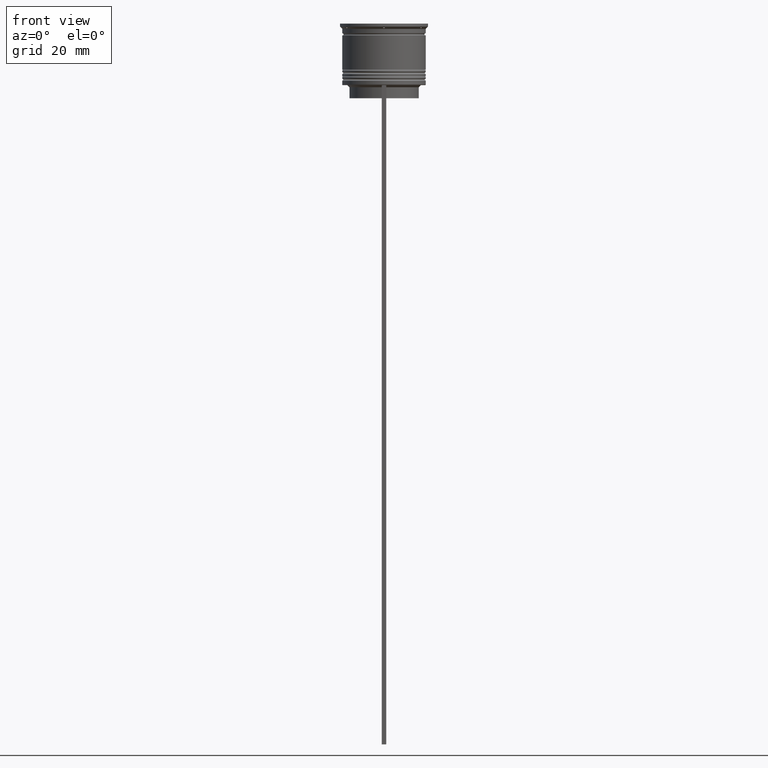
[diagram: clean part render]
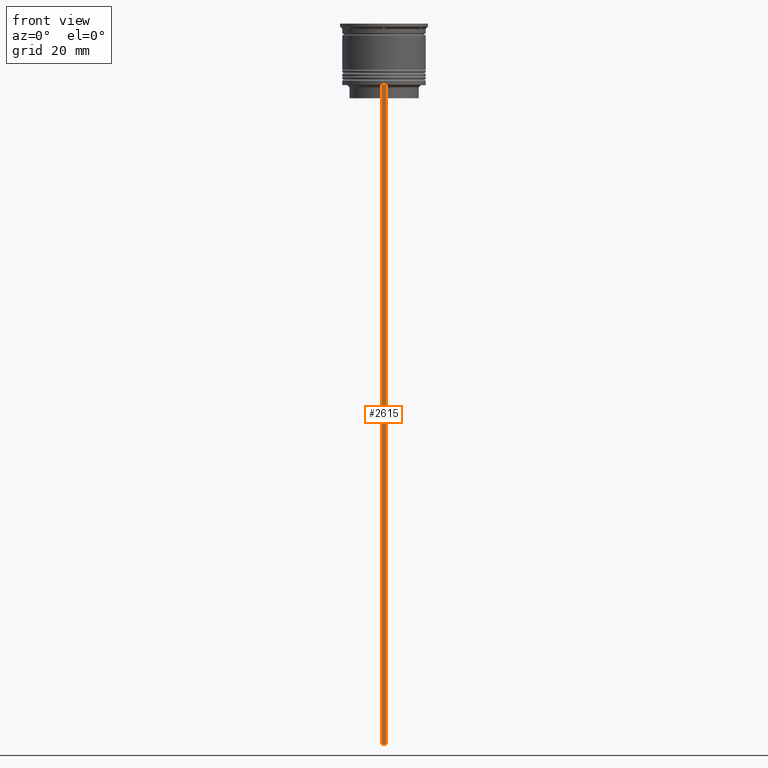
[diagram: same view with one face highlighted and labeled with its STEP entity id]
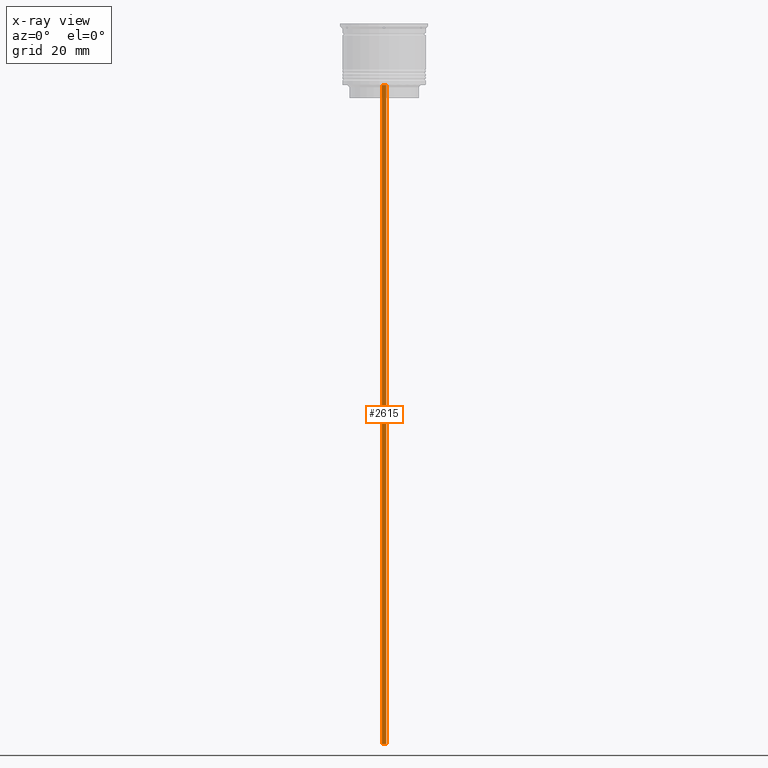
[diagram: x-ray of the same camera — body ghosted, the highlighted face saturated]
A machine part, front view. The second image highlights one B-rep face of the part: STEP entity #2615.
The next image is the same camera in x-ray: the body ghosted, the highlighted face saturated — about 0% of this face is hidden behind the body in this view.
In plain terms, the highlighted planar face has unit normal (0, -1, -0).
Its self-contained STEP definition (entity closure, byte-faithful):
#26 = VECTOR ( 'NONE', #876, 1000.000000000000000 ) ;
#99 = VERTEX_POINT ( 'NONE', #2379 ) ;
#119 = DIRECTION ( 'NONE',  ( 0.000000000000000000, 0.000000000000000000, -1.000000000000000000 ) ) ;
#131 = LINE ( 'NONE', #2404, #2020 ) ;
#159 = DIRECTION ( 'NONE',  ( 0.000000000000000000, -1.000000000000000000, -0.000000000000000000 ) ) ;
#191 = VECTOR ( 'NONE', #2163, 1000.000000000000000 ) ;
#291 = AXIS2_PLACEMENT_3D ( 'NONE', #1990, #159, #2014 ) ;
#331 = DIRECTION ( 'NONE',  ( 1.000000000000000000, 0.000000000000000000, 0.000000000000000000 ) ) ;
#604 = VERTEX_POINT ( 'NONE', #1665 ) ;
#626 = ORIENTED_EDGE ( 'NONE', *, *, #1711, .F. ) ;
#679 = VECTOR ( 'NONE', #119, 1000.000000000000000 ) ;
#737 = CARTESIAN_POINT ( 'NONE',  ( -0.5000000000000000000, -9.500000000000001776, 5.026297590440445440 ) ) ;
#759 = EDGE_CURVE ( 'NONE', #2045, #940, #2555, .T. ) ;
#876 = DIRECTION ( 'NONE',  ( -1.000000000000000000, 0.000000000000000000, 0.000000000000000000 ) ) ;
#906 = LINE ( 'NONE', #1949, #26 ) ;
#940 = VERTEX_POINT ( 'NONE', #2427 ) ;
#1180 = EDGE_CURVE ( 'NONE', #940, #604, #906, .T. ) ;
#1214 = EDGE_LOOP ( 'NONE', ( #626, #1500, #1270, #2651 ) ) ;
#1270 = ORIENTED_EDGE ( 'NONE', *, *, #1180, .F. ) ;
#1285 = CARTESIAN_POINT ( 'NONE',  ( 0.5000000000000000000, -9.500000000000001776, -14.00000000000000178 ) ) ;
#1342 = EDGE_CURVE ( 'NONE', #99, #604, #2606, .T. ) ;
#1365 = FACE_OUTER_BOUND ( 'NONE', #1214, .T. ) ;
#1500 = ORIENTED_EDGE ( 'NONE', *, *, #1342, .T. ) ;
#1525 = CARTESIAN_POINT ( 'NONE',  ( 0.5000000000000000000, -9.500000000000001776, 5.026297590440445440 ) ) ;
#1665 = CARTESIAN_POINT ( 'NONE',  ( -0.5000000000000000000, -9.500000000000001776, -163.9999999999999716 ) ) ;
#1711 = EDGE_CURVE ( 'NONE', #99, #2045, #131, .T. ) ;
#1949 = CARTESIAN_POINT ( 'NONE',  ( 0.5000000000000000000, -9.500000000000001776, -163.9999999999999716 ) ) ;
#1990 = CARTESIAN_POINT ( 'NONE',  ( 0.5000000000000000000, -9.500000000000001776, 5.026297590440445440 ) ) ;
#2014 = DIRECTION ( 'NONE',  ( 0.000000000000000000, 0.000000000000000000, -1.000000000000000000 ) ) ;
#2020 = VECTOR ( 'NONE', #331, 1000.000000000000000 ) ;
#2045 = VERTEX_POINT ( 'NONE', #1285 ) ;
#2163 = DIRECTION ( 'NONE',  ( 0.000000000000000000, 0.000000000000000000, -1.000000000000000000 ) ) ;
#2379 = CARTESIAN_POINT ( 'NONE',  ( -0.5000000000000000000, -9.500000000000001776, -14.00000000000000178 ) ) ;
#2404 = CARTESIAN_POINT ( 'NONE',  ( 0.5000000000000000000, -9.500000000000001776, -14.00000000000000178 ) ) ;
#2424 = PLANE ( 'NONE',  #291 ) ;
#2427 = CARTESIAN_POINT ( 'NONE',  ( 0.5000000000000000000, -9.500000000000001776, -163.9999999999999716 ) ) ;
#2555 = LINE ( 'NONE', #1525, #191 ) ;
#2606 = LINE ( 'NONE', #737, #679 ) ;
#2615 = ADVANCED_FACE ( 'NONE', ( #1365 ), #2424, .T. ) ;
#2651 = ORIENTED_EDGE ( 'NONE', *, *, #759, .F. ) ;